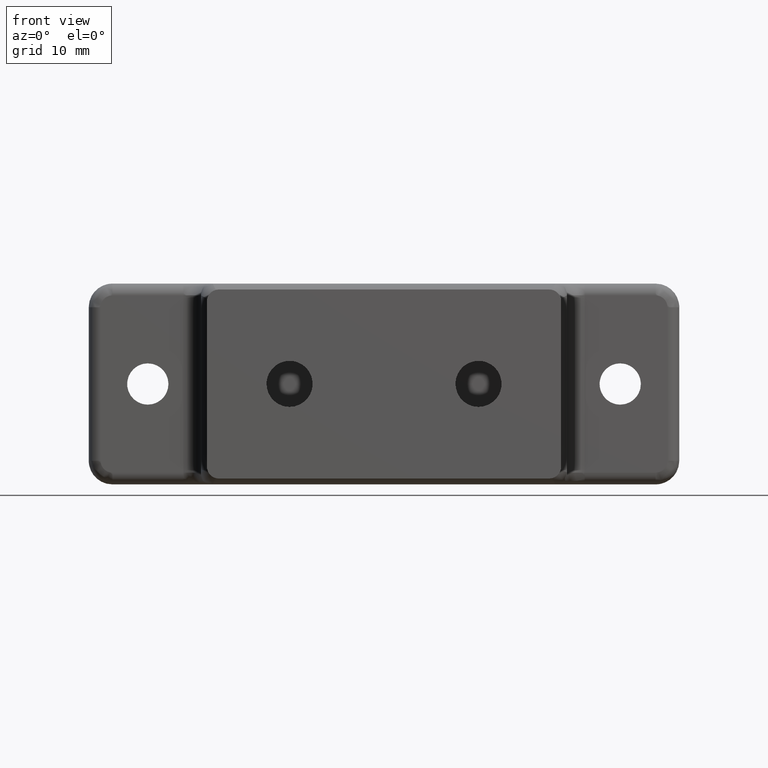
[diagram: clean part render]
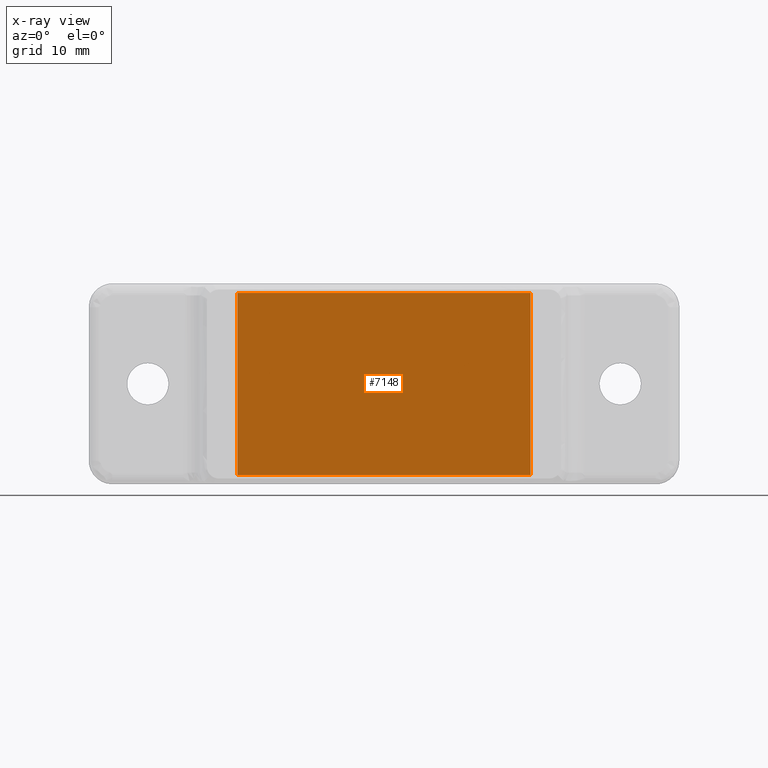
[diagram: x-ray — body ghosted, one internal face saturated and labeled with its STEP entity id]
A machine part, front view, then the same camera in x-ray: the body is ghosted and one INTERNAL B-rep face — a face not visible from any outside direction — is saturated and labeled: STEP entity #7148.
In plain terms, the highlighted face is a freeform B-spline surface patch.
Its self-contained STEP definition (entity closure, byte-faithful):
#6627=CARTESIAN_POINT('',(12.401923788646560,-2.190598962264745,-7.700000000000000));
#6628=VERTEX_POINT('',#6627);
#6649=CARTESIAN_POINT('',(12.401923788646560,-2.190598962264745,7.700000000000000));
#6650=VERTEX_POINT('',#6649);
#6664=CARTESIAN_POINT('',(12.401923788646560,-2.190598962264745,-7.700000000000000));
#6665=CARTESIAN_POINT('',(12.401923788646560,-2.190598962264745,7.700000000000000));
#6666=QUASI_UNIFORM_CURVE('',1,(#6664,#6665),.UNSPECIFIED.,.F.,.U.);
#6667=EDGE_CURVE('',#6628,#6650,#6666,.T.);
#6686=CARTESIAN_POINT('',(-12.401923788646700,-2.190598962264685,-7.700000000000000));
#6687=VERTEX_POINT('',#6686);
#6703=CARTESIAN_POINT('',(-12.401923788646700,-2.190598962264685,7.700000000000000));
#6704=VERTEX_POINT('',#6703);
#6705=CARTESIAN_POINT('',(-12.401923788646700,-2.190598962264685,7.700000000000000));
#6706=CARTESIAN_POINT('',(-12.401923788646700,-2.190598962264685,-7.700000000000000));
#6707=QUASI_UNIFORM_CURVE('',1,(#6705,#6706),.UNSPECIFIED.,.F.,.U.);
#6708=EDGE_CURVE('',#6704,#6687,#6707,.T.);
#6990=CARTESIAN_POINT('',(-12.401923788646700,-2.190598962264685,7.700000000000000));
#6991=CARTESIAN_POINT('',(12.401923788646560,-2.190598962264745,7.700000000000000));
#6992=QUASI_UNIFORM_CURVE('',1,(#6990,#6991),.UNSPECIFIED.,.F.,.U.);
#6993=EDGE_CURVE('',#6704,#6650,#6992,.T.);
#7054=CARTESIAN_POINT('',(-12.401923788646700,-2.190598962264685,-7.700000000000000));
#7055=CARTESIAN_POINT('',(12.401923788646560,-2.190598962264745,-7.700000000000000));
#7056=QUASI_UNIFORM_CURVE('',1,(#7054,#7055),.UNSPECIFIED.,.F.,.U.);
#7057=EDGE_CURVE('',#6687,#6628,#7056,.T.);
#7137=CARTESIAN_POINT('',(-13.640876392739379,-2.190598962264685,-8.469229770568012));
#7138=CARTESIAN_POINT('',(13.640876614502909,-2.190598962264685,-8.469229770568012));
#7139=CARTESIAN_POINT('',(-13.640876392739379,-2.190598962264685,8.469229219821097));
#7140=CARTESIAN_POINT('',(13.640876614502909,-2.190598962264685,8.469229219821097));
#7141=B_SPLINE_SURFACE_WITH_KNOTS('',1,1,((#7137,#7139),(#7138,#7140)),.UNSPECIFIED.,.F.,.F.,.U.,(2,2),(2,2),(0.0,27.281753007242290),(0.0,16.938458990389108),.UNSPECIFIED.);
#7142=ORIENTED_EDGE('',*,*,#6993,.F.);
#7143=ORIENTED_EDGE('',*,*,#6708,.T.);
#7144=ORIENTED_EDGE('',*,*,#7057,.T.);
#7145=ORIENTED_EDGE('',*,*,#6667,.T.);
#7146=EDGE_LOOP('',(#7142,#7143,#7144,#7145));
#7147=FACE_OUTER_BOUND('',#7146,.T.);
#7148=ADVANCED_FACE('',(#7147),#7141,.T.);